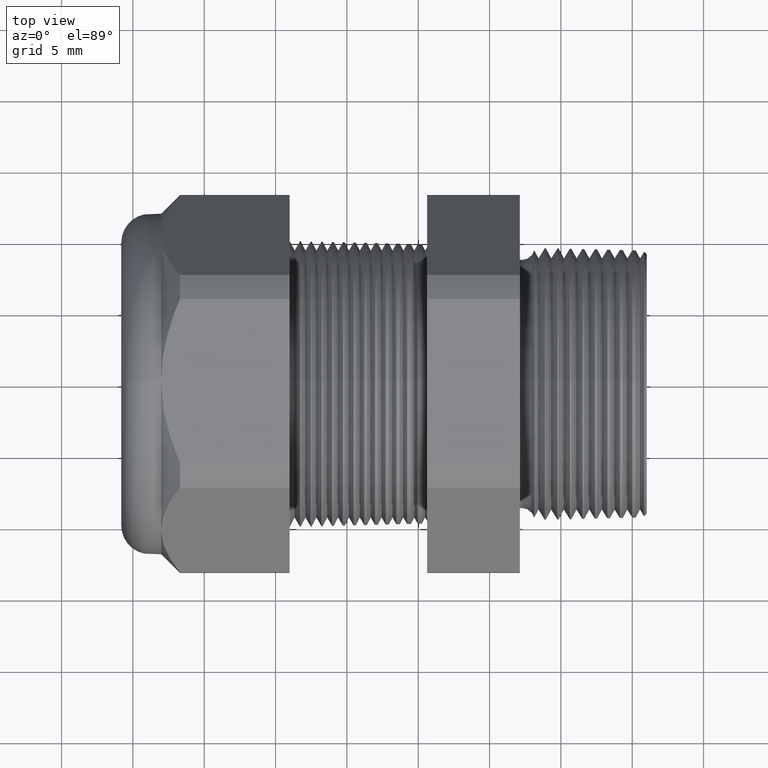
[diagram: clean part render]
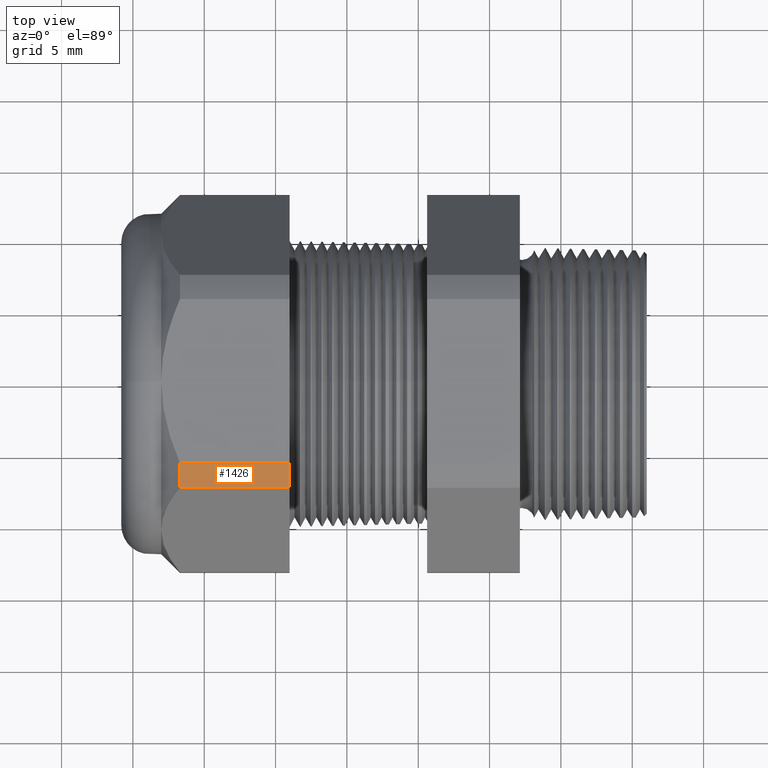
[diagram: same view with one face highlighted and labeled with its STEP entity id]
A machine part, top view. The second image highlights one B-rep face of the part: STEP entity #1426.
In plain terms, the highlighted cylindrical surface (partial cylindrical patch) has radius 13.2512 mm, axis along (-1, 0, 0).
Its self-contained STEP definition (entity closure, byte-faithful):
#1347 = EDGE_CURVE ( 'NONE', #1403, #1404, #4206, .T. ) ;
#1362 = EDGE_CURVE ( 'NONE', #1363, #1417, #4239, .T. ) ;
#1363 = VERTEX_POINT ( 'NONE', #4234 ) ;
#1403 = VERTEX_POINT ( 'NONE', #4373 ) ;
#1404 = VERTEX_POINT ( 'NONE', #4372 ) ;
#1405 = ORIENTED_EDGE ( 'NONE', *, *, #1406, .T. ) ;
#1406 = EDGE_CURVE ( 'NONE', #1404, #1417, #4371, .T. ) ;
#1407 = ORIENTED_EDGE ( 'NONE', *, *, #1362, .F. ) ;
#1408 = ORIENTED_EDGE ( 'NONE', *, *, #1409, .F. ) ;
#1409 = EDGE_CURVE ( 'NONE', #1403, #1363, #4366, .T. ) ;
#1417 = VERTEX_POINT ( 'NONE', #4411 ) ;
#1426 = ADVANCED_FACE ( 'NONE', ( #4386 ), #4385, .T. ) ;
#1427 = EDGE_LOOP ( 'NONE', ( #1428, #1405, #1407, #1408 ) ) ;
#1428 = ORIENTED_EDGE ( 'NONE', *, *, #1347, .T. ) ;
#4203 = DIRECTION ( 'NONE',  ( -1.000000000000000000, 0.0000000000000000000, 0.0000000000000000000 ) ) ;
#4204 = VECTOR ( 'NONE', #4203, 39.37007874015748100 ) ;
#4205 = CARTESIAN_POINT ( 'NONE',  ( 0.03999999999999984800, -0.2264307620443835300, 0.4699999999999997000 ) ) ;
#4206 = LINE ( 'NONE', #4205, #4204 ) ;
#4234 = CARTESIAN_POINT ( 'NONE',  ( -0.9454330708661418100, -0.2938165587564945900, 0.4310947921287050500 ) ) ;
#4236 = DIRECTION ( 'NONE',  ( -1.000000000000000000, 0.0000000000000000000, 0.0000000000000000000 ) ) ;
#4237 = VECTOR ( 'NONE', #4236, 39.37007874015748100 ) ;
#4238 = CARTESIAN_POINT ( 'NONE',  ( 0.03999999999999984800, -0.2938165587564945900, 0.4310947921287050500 ) ) ;
#4239 = LINE ( 'NONE', #4238, #4237 ) ;
#4362 = DIRECTION ( 'NONE',  ( 0.0000000000000000000, 0.0000000000000000000, -1.000000000000000000 ) ) ;
#4363 = DIRECTION ( 'NONE',  ( 1.000000000000000000, 0.0000000000000000000, 0.0000000000000000000 ) ) ;
#4364 = CARTESIAN_POINT ( 'NONE',  ( -0.9454330708661418100, 0.0000000000000000000, 0.0000000000000000000 ) ) ;
#4365 = AXIS2_PLACEMENT_3D ( 'NONE', #4364, #4363, #4362 ) ;
#4366 = CIRCLE ( 'NONE', #4365, 0.5217000000000000500 ) ;
#4367 = DIRECTION ( 'NONE',  ( 0.0000000000000000000, 0.0000000000000000000, -1.000000000000000000 ) ) ;
#4368 = DIRECTION ( 'NONE',  ( 1.000000000000000000, 0.0000000000000000000, 0.0000000000000000000 ) ) ;
#4369 = CARTESIAN_POINT ( 'NONE',  ( -1.248063779527559100, 0.0000000000000000000, 0.0000000000000000000 ) ) ;
#4370 = AXIS2_PLACEMENT_3D ( 'NONE', #4369, #4368, #4367 ) ;
#4371 = CIRCLE ( 'NONE', #4370, 0.5217000000000000500 ) ;
#4372 = CARTESIAN_POINT ( 'NONE',  ( -1.248063779527559100, -0.2264307620443835300, 0.4699999999999999200 ) ) ;
#4373 = CARTESIAN_POINT ( 'NONE',  ( -0.9454330708661418100, -0.2264307620443835300, 0.4699999999999997000 ) ) ;
#4385 = CYLINDRICAL_SURFACE ( 'NONE', #4442, 0.5217000000000000500 ) ;
#4386 = FACE_OUTER_BOUND ( 'NONE', #1427, .T. ) ;
#4395 = CARTESIAN_POINT ( 'NONE',  ( 0.03999999999999984800, 0.0000000000000000000, 0.0000000000000000000 ) ) ;
#4411 = CARTESIAN_POINT ( 'NONE',  ( -1.248063779527559100, -0.2938165587564945900, 0.4310947921287050500 ) ) ;
#4440 = DIRECTION ( 'NONE',  ( 0.0000000000000000000, 0.0000000000000000000, 1.000000000000000000 ) ) ;
#4441 = DIRECTION ( 'NONE',  ( -1.000000000000000000, 0.0000000000000000000, 0.0000000000000000000 ) ) ;
#4442 = AXIS2_PLACEMENT_3D ( 'NONE', #4395, #4441, #4440 ) ;